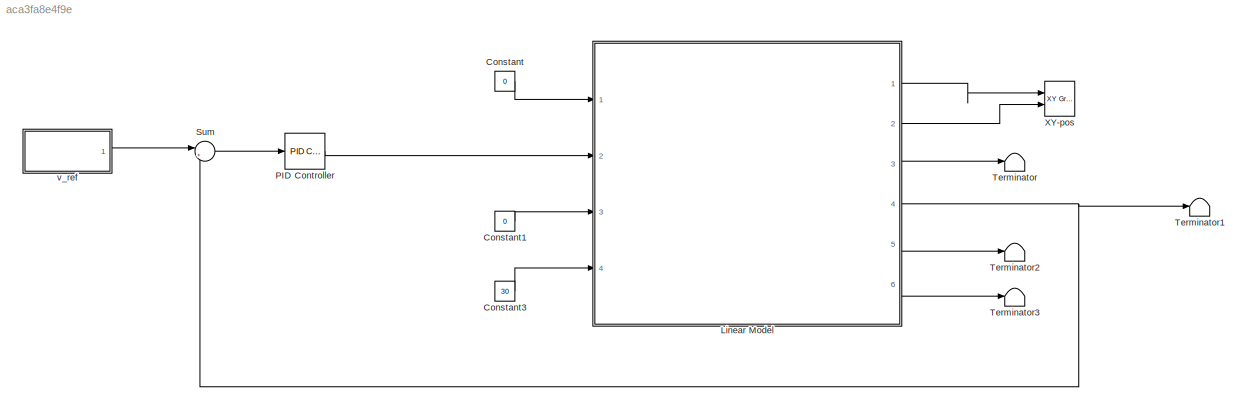
MODEL slx_aca3fa8e4f9e
KIND model
CONFIG AbsTol = auto
CONFIG EnableMultiTasking = off
CONFIG FixedStep = auto
CONFIG MaxStep = auto
CONFIG MinStep = auto
CONFIG RelTol = 1e-3
CONFIG SampleTimeConstraint = Unconstrained
CONFIG Solver = VariableStepAuto
CONFIG SolverName = VariableStepAuto
CONFIG StartTime = 0.0
CONFIG StopTime = 100
BLOCK [Constant] Constant
  Value = 0
BLOCK [Constant] Constant1
  Value = 0
BLOCK [Constant] Constant3
  Value = 30
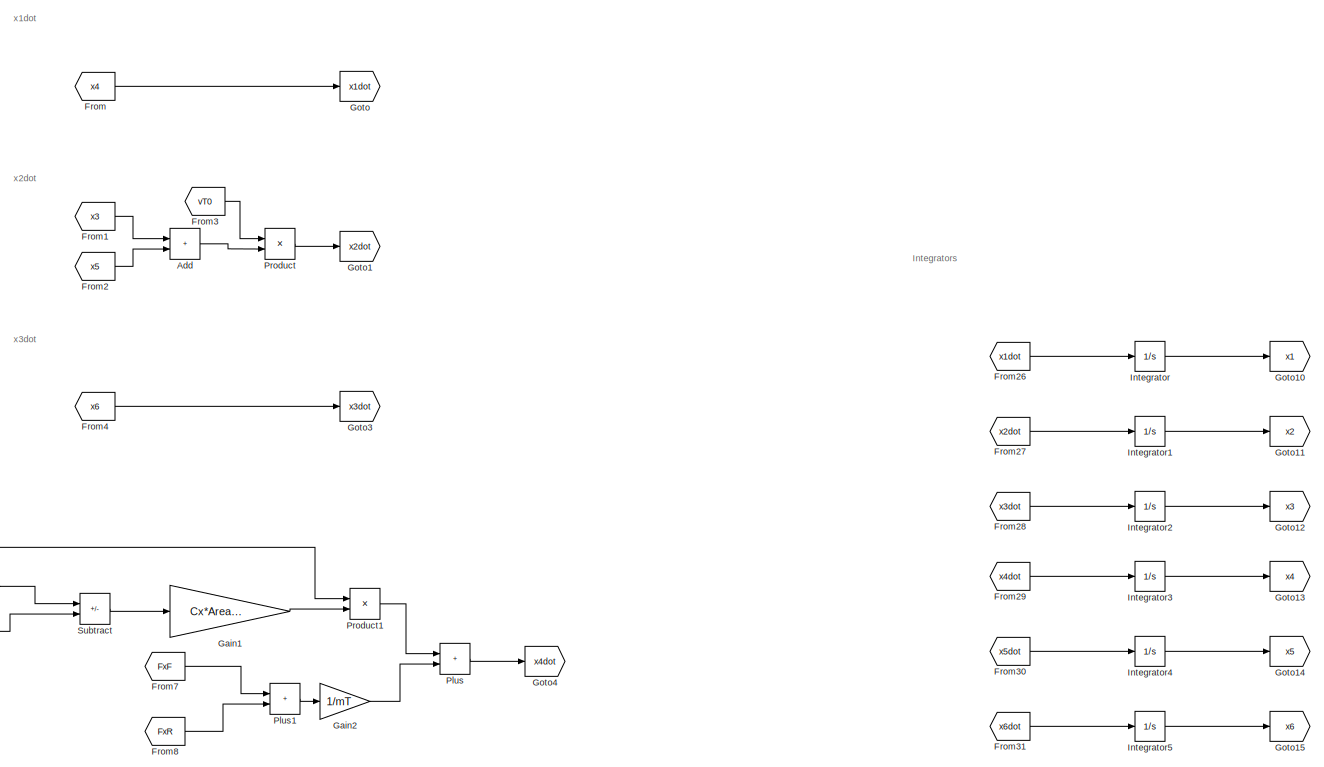
[diagram: Linear Model - part 1/4, top center region]
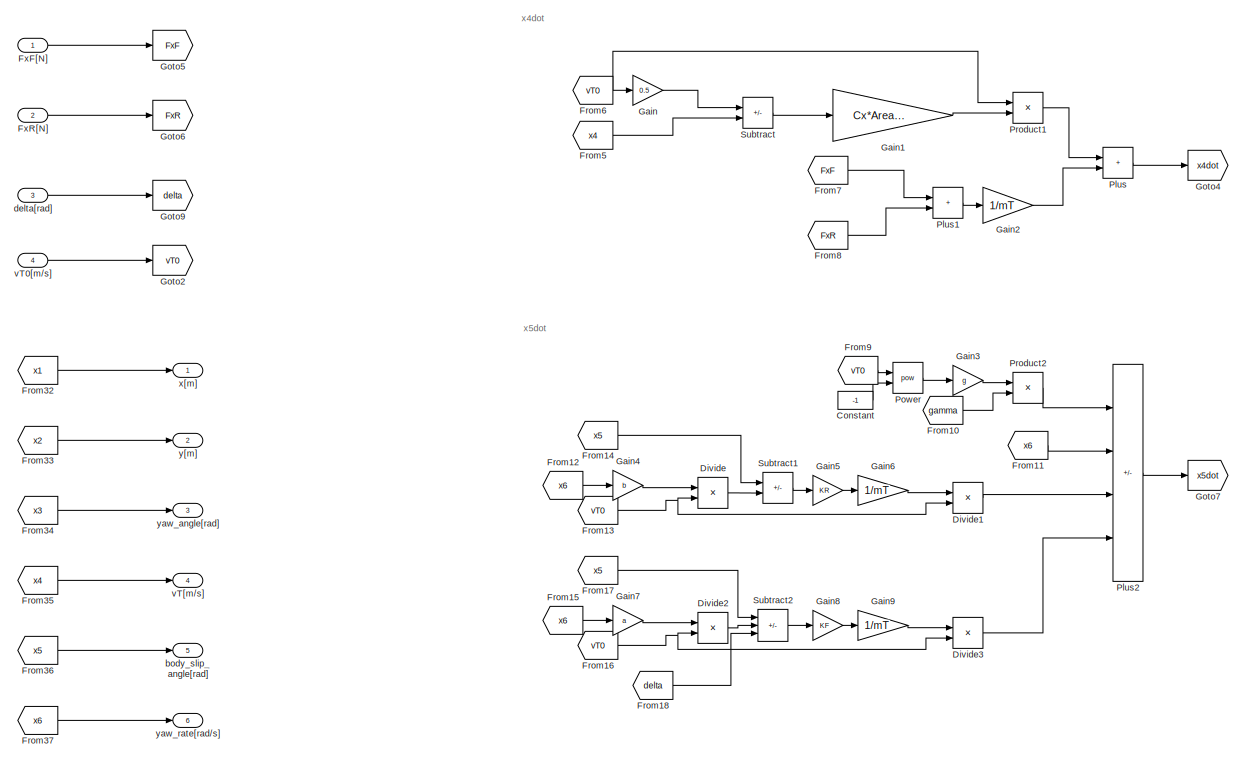
[diagram: Linear Model - part 2/4, middle left region]
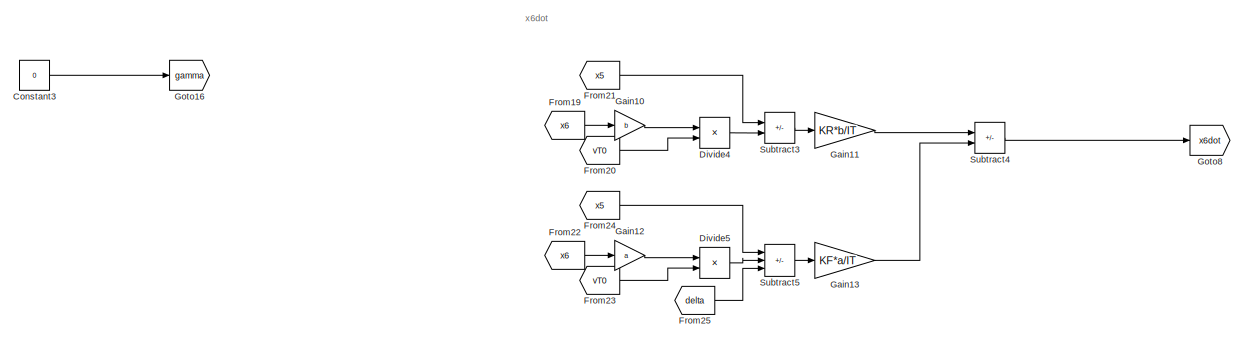
[diagram: Linear Model - part 3/4, bottom left region]
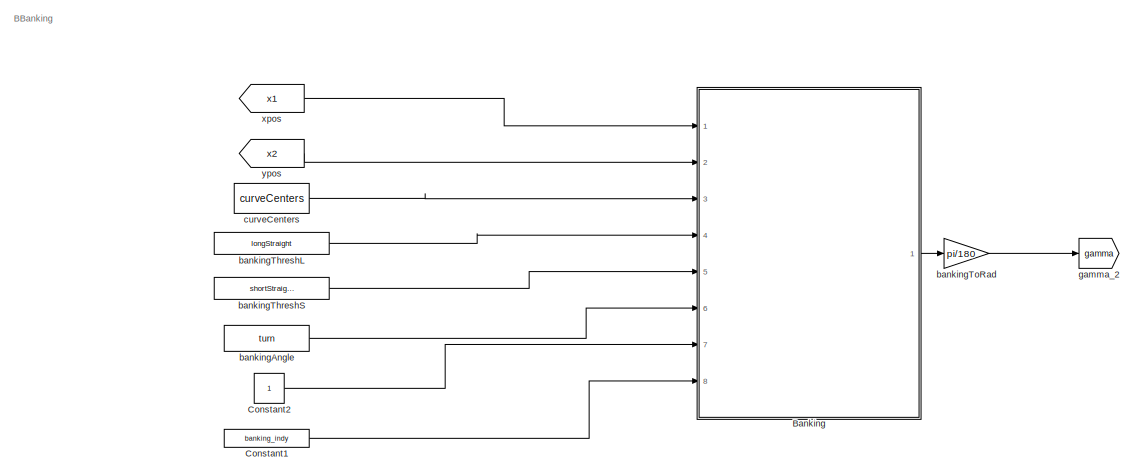
[diagram: Linear Model - part 4/4, bottom center region]
BLOCK [SubSystem] Linear Model
  Ports = [4, 6]
  RequestExecContextInheritance = off
BLOCK [Sum] Linear Model/Add
  IconShape = rectangular
  Ports = [2, 1]
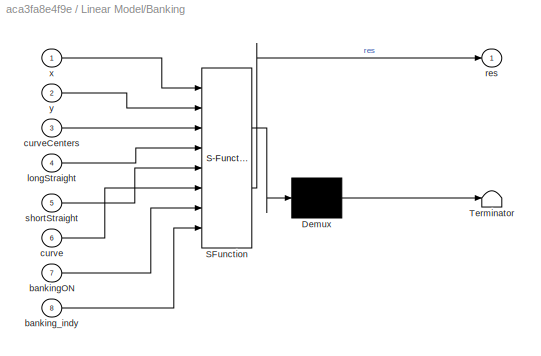
BLOCK [SubSystem] Linear Model/Banking
  Commented = on
  ErrorFcn = Stateflow.Translate.translate
  PermitHierarchicalResolution = ExplicitOnly
  Ports = [8, 1]
  RequestExecContextInheritance = off
  SFBlockType = MATLAB Function
  TreatAsAtomicUnit = on
BLOCK [Demux] Linear Model/Banking/ Demux 
  Outputs = 1
  Ports = [1, 1]
BLOCK [S-Function] Linear Model/Banking/ SFunction 
  EnableBusSupport = on
  FunctionName = sf_sfun
  PortCounts = [8 2]
  Ports = [8, 2]
  SFcnIsStateOwnerBlock = off
  SFunctionDeploymentMode = off
  Tag = Stateflow S-Function 2
BLOCK [Terminator] Linear Model/Banking/ Terminator 
BLOCK [Inport] Linear Model/Banking/bankingON
  Port = 7
BLOCK [Inport] Linear Model/Banking/banking_indy
  Port = 8
BLOCK [Inport] Linear Model/Banking/curve
  Port = 6
BLOCK [Inport] Linear Model/Banking/curveCenters
  Port = 3
BLOCK [Inport] Linear Model/Banking/longStraight
  Port = 4
BLOCK [Outport] Linear Model/Banking/res
BLOCK [Inport] Linear Model/Banking/shortStraight
  Port = 5
BLOCK [Inport] Linear Model/Banking/x
BLOCK [Inport] Linear Model/Banking/y
  Port = 2
BLOCK [Constant] Linear Model/Constant
  Value = -1
BLOCK [Constant] Linear Model/Constant1
  Commented = on
  Value = banking_indy
BLOCK [Constant] Linear Model/Constant2
  Commented = on
BLOCK [Constant] Linear Model/Constant3
  Value = 0
BLOCK [Product] Linear Model/Divide
  Inputs = */
  Ports = [2, 1]
BLOCK [Product] Linear Model/Divide1
  Inputs = */
  Ports = [2, 1]
BLOCK [Product] Linear Model/Divide2
  Inputs = */
  Ports = [2, 1]
BLOCK [Product] Linear Model/Divide3
  Inputs = */
  Ports = [2, 1]
BLOCK [Product] Linear Model/Divide4
  Inputs = */
  Ports = [2, 1]
BLOCK [Product] Linear Model/Divide5
  Inputs = */
  Ports = [2, 1]
BLOCK [From] Linear Model/From
  GotoTag = x4
BLOCK [From] Linear Model/From1
  GotoTag = x3
BLOCK [From] Linear Model/From10
  GotoTag = gamma
BLOCK [From] Linear Model/From11
  GotoTag = x6
BLOCK [From] Linear Model/From12
  GotoTag = x6
BLOCK [From] Linear Model/From13
  GotoTag = vT0
BLOCK [From] Linear Model/From14
  GotoTag = x5
BLOCK [From] Linear Model/From15
  GotoTag = x6
BLOCK [From] Linear Model/From16
  GotoTag = vT0
BLOCK [From] Linear Model/From17
  GotoTag = x5
BLOCK [From] Linear Model/From18
  GotoTag = delta
BLOCK [From] Linear Model/From19
  GotoTag = x6
BLOCK [From] Linear Model/From2
  GotoTag = x5
BLOCK [From] Linear Model/From20
  GotoTag = vT0
BLOCK [From] Linear Model/From21
  GotoTag = x5
BLOCK [From] Linear Model/From22
  GotoTag = x6
BLOCK [From] Linear Model/From23
  GotoTag = vT0
BLOCK [From] Linear Model/From24
  GotoTag = x5
BLOCK [From] Linear Model/From25
  GotoTag = delta
BLOCK [From] Linear Model/From26
  GotoTag = x1dot
BLOCK [From] Linear Model/From27
  GotoTag = x2dot
BLOCK [From] Linear Model/From28
  GotoTag = x3dot
BLOCK [From] Linear Model/From29
  GotoTag = x4dot
BLOCK [From] Linear Model/From3
  GotoTag = vT0
BLOCK [From] Linear Model/From30
  GotoTag = x5dot
BLOCK [From] Linear Model/From31
  GotoTag = x6dot
BLOCK [From] Linear Model/From32
  GotoTag = x1
BLOCK [From] Linear Model/From33
  GotoTag = x2
BLOCK [From] Linear Model/From34
  GotoTag = x3
BLOCK [From] Linear Model/From35
  GotoTag = x4
BLOCK [From] Linear Model/From36
  GotoTag = x5
BLOCK [From] Linear Model/From37
  GotoTag = x6
BLOCK [From] Linear Model/From4
  GotoTag = x6
BLOCK [From] Linear Model/From5
  GotoTag = x4
BLOCK [From] Linear Model/From6
  GotoTag = vT0
BLOCK [From] Linear Model/From7
  GotoTag = FxF
BLOCK [From] Linear Model/From8
  GotoTag = FxR
BLOCK [From] Linear Model/From9
  GotoTag = vT0
BLOCK [Inport] Linear Model/FxF[N]
  Unit = N
BLOCK [Inport] Linear Model/FxR[N]
  Port = 2
  Unit = N
BLOCK [Gain] Linear Model/Gain
  Gain = 0.5
BLOCK [Gain] Linear Model/Gain1
  Gain = Cx*Area*rho_0/mT
BLOCK [Gain] Linear Model/Gain10
  Gain = b
BLOCK [Gain] Linear Model/Gain11
  Gain = KR*b/IT
BLOCK [Gain] Linear Model/Gain12
  Gain = a
BLOCK [Gain] Linear Model/Gain13
  Gain = KF*a/IT
BLOCK [Gain] Linear Model/Gain2
  Gain = 1/mT
BLOCK [Gain] Linear Model/Gain3
  Gain = g
BLOCK [Gain] Linear Model/Gain4
  Gain = b
BLOCK [Gain] Linear Model/Gain5
  Gain = KR
BLOCK [Gain] Linear Model/Gain6
  Gain = 1/mT
BLOCK [Gain] Linear Model/Gain7
  Gain = a
BLOCK [Gain] Linear Model/Gain8
  Gain = KF
BLOCK [Gain] Linear Model/Gain9
  Gain = 1/mT
BLOCK [Goto] Linear Model/Goto
  GotoTag = x1dot
BLOCK [Goto] Linear Model/Goto1
  GotoTag = x2dot
BLOCK [Goto] Linear Model/Goto10
  GotoTag = x1
BLOCK [Goto] Linear Model/Goto11
  GotoTag = x2
BLOCK [Goto] Linear Model/Goto12
  GotoTag = x3
BLOCK [Goto] Linear Model/Goto13
  GotoTag = x4
BLOCK [Goto] Linear Model/Goto14
  GotoTag = x5
BLOCK [Goto] Linear Model/Goto15
  GotoTag = x6
BLOCK [Goto] Linear Model/Goto16
  GotoTag = gamma
BLOCK [Goto] Linear Model/Goto2
  GotoTag = vT0
BLOCK [Goto] Linear Model/Goto3
  GotoTag = x3dot
BLOCK [Goto] Linear Model/Goto4
  GotoTag = x4dot
BLOCK [Goto] Linear Model/Goto5
  GotoTag = FxF
BLOCK [Goto] Linear Model/Goto6
  GotoTag = FxR
BLOCK [Goto] Linear Model/Goto7
  GotoTag = x5dot
BLOCK [Goto] Linear Model/Goto8
  GotoTag = x6dot
BLOCK [Goto] Linear Model/Goto9
  GotoTag = delta
BLOCK [Integrator] Linear Model/Integrator
  Ports = [1, 1]
BLOCK [Integrator] Linear Model/Integrator1
  Ports = [1, 1]
BLOCK [Integrator] Linear Model/Integrator2
  Ports = [1, 1]
BLOCK [Integrator] Linear Model/Integrator3
  InitialCondition = 25
  LimitOutput = on
  LowerSaturationLimit = 0
  Ports = [1, 1]
BLOCK [Integrator] Linear Model/Integrator4
  Ports = [1, 1]
BLOCK [Integrator] Linear Model/Integrator5
  Ports = [1, 1]
BLOCK [Sum] Linear Model/Plus
  IconShape = rectangular
  Ports = [2, 1]
BLOCK [Sum] Linear Model/Plus1
  IconShape = rectangular
  Ports = [2, 1]
BLOCK [Sum] Linear Model/Plus2
  IconShape = rectangular
  Inputs = +---
  Ports = [4, 1]
BLOCK [Math] Linear Model/Power
  Operator = pow
  Ports = [2, 1]
BLOCK [Product] Linear Model/Product
  Ports = [2, 1]
BLOCK [Product] Linear Model/Product1
  Ports = [2, 1]
BLOCK [Product] Linear Model/Product2
  Ports = [2, 1]
BLOCK [Sum] Linear Model/Subtract
  IconShape = rectangular
  Inputs = +-
  Ports = [2, 1]
BLOCK [Sum] Linear Model/Subtract1
  IconShape = rectangular
  Inputs = +-
  Ports = [2, 1]
BLOCK [Sum] Linear Model/Subtract2
  IconShape = rectangular
  Inputs = ++-
  Ports = [3, 1]
BLOCK [Sum] Linear Model/Subtract3
  IconShape = rectangular
  Inputs = +-
  Ports = [2, 1]
BLOCK [Sum] Linear Model/Subtract4
  IconShape = rectangular
  Inputs = +-
  Ports = [2, 1]
BLOCK [Sum] Linear Model/Subtract5
  IconShape = rectangular
  Inputs = ++-
  Ports = [3, 1]
BLOCK [Constant] Linear Model/bankingAngle
  Commented = on
  Value = turn
BLOCK [Constant] Linear Model/bankingThreshL
  Commented = on
  Value = longStraight
BLOCK [Constant] Linear Model/bankingThreshS
  Commented = on
  Value = shortStraight
BLOCK [Gain] Linear Model/bankingToRad
  Commented = on
  Gain = pi/180
BLOCK [Outport] Linear Model/body_slip_angle[rad]
  Port = 5
  Unit = rad
BLOCK [Constant] Linear Model/curveCenters
  Commented = on
  Value = curveCenters
BLOCK [Inport] Linear Model/delta[rad]
  Port = 3
  Unit = N
BLOCK [Goto] Linear Model/gamma_2
  Commented = on
  GotoTag = gamma
BLOCK [Inport] Linear Model/vT0[m//s]
  Port = 4
  Unit = m/s
BLOCK [Outport] Linear Model/vT[m//s]
  Port = 4
  Unit = m/s
BLOCK [Outport] Linear Model/x[m]
  Unit = m
BLOCK [From] Linear Model/xpos
  Commented = on
  GotoTag = x1
BLOCK [Outport] Linear Model/y[m]
  Port = 2
  Unit = m
BLOCK [Outport] Linear Model/yaw_angle[rad]
  Port = 3
  Unit = rad
BLOCK [Outport] Linear Model/yaw_rate[rad//s]
  Port = 6
  Unit = rad/s
BLOCK [From] Linear Model/ypos
  Commented = on
  GotoTag = x2
BLOCK [Reference] PID Controller  REF=simulink/Continuous/PID Controller
  Ports = [1, 1]
  SourceBlock = simulink/Continuous/PID Controller
  SourceProductBaseCode = SL
  SourceType = PID 1dof
BLOCK [Sum] Sum
  Inputs = |+-
  Ports = [2, 1]
BLOCK [Terminator] Terminator
BLOCK [Terminator] Terminator1
BLOCK [Terminator] Terminator2
BLOCK [Terminator] Terminator3
BLOCK [Reference] XY-pos  REF=simulink/Sinks/XY Graph
  Ports = [2]
  SourceBlock = simulink/Sinks/XY Graph
  SourceProductBaseCode = SL
  SourceType = XY scope.
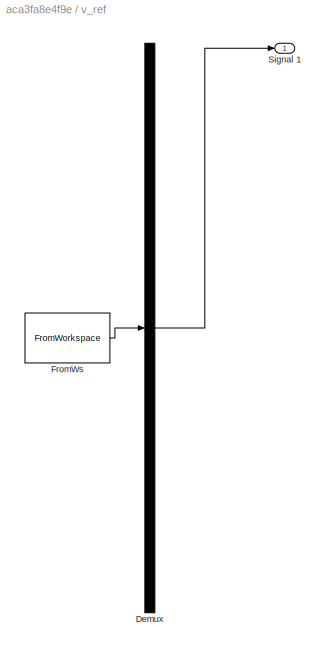
BLOCK [SubSystem] v_ref
  ClipboardFcn = sigbuilder_block('clipboard');
  CloseFcn = sigbuilder_block('close');
  ContinueFcn = sigbuilder_block('continue');
  CopyFcn = sigbuilder_block('copy');
  DeleteFcn = sigbuilder_block('delete');
  LoadFcn = sigbuilder_block('load');
  MaskHideContents = on
  ModelCloseFcn = sigbuilder_block('modelClose');
  NameChangeFcn = sigbuilder_block('namechange');
  OpenFcn = sigbuilder_block('open',[0 30 1152 561.6 ]);
  PauseFcn = sigbuilder_block('pause');
  Ports = [0, 1]
  PreSaveFcn = sigbuilder_block('preSave');
  RequestExecContextInheritance = off
  StartFcn = sigbuilder_block('start');
  StopFcn = sigbuilder_block('stop');
  Tag = STV Subsys
BLOCK [Demux] v_ref/Demux
  DisplayOption = none
  Outputs = 1
  Ports = [1, 1]
  Tag = STV Demux
BLOCK [FromWorkspace] v_ref/FromWs
  Tag = STV FromWs
  VariableName = tuvar
BLOCK [Outport] v_ref/Signal 1
  Tag = STV Outport
ANNOTATION Linear Model: BBanking
ANNOTATION Linear Model: Integrators
ANNOTATION Linear Model: x1dot
ANNOTATION Linear Model: x2dot
ANNOTATION Linear Model: x3dot
ANNOTATION Linear Model: x4dot
ANNOTATION Linear Model: x5dot
ANNOTATION Linear Model: x6dot
LINE Constant1:1 -> Linear Model:3
LINE Constant3:1 -> Linear Model:4
LINE Constant:1 -> Linear Model:1
LINE Linear Model/Add:1 -> Linear Model/Product:2
LINE Linear Model/Banking:1 -> Linear Model/bankingToRad:1
LINE Linear Model/Constant1:1 -> Linear Model/Banking:8
LINE Linear Model/Constant2:1 -> Linear Model/Banking:7
LINE Linear Model/Constant3:1 -> Linear Model/Goto16:1
LINE Linear Model/Constant:1 -> Linear Model/Power:2
LINE Linear Model/Divide1:1 -> Linear Model/Plus2:3
LINE Linear Model/Divide2:1 -> Linear Model/Subtract2:2
LINE Linear Model/Divide3:1 -> Linear Model/Plus2:4
LINE Linear Model/Divide4:1 -> Linear Model/Subtract3:2
LINE Linear Model/Divide5:1 -> Linear Model/Subtract5:2
LINE Linear Model/Divide:1 -> Linear Model/Subtract1:2
LINE Linear Model/From10:1 -> Linear Model/Product2:2
LINE Linear Model/From11:1 -> Linear Model/Plus2:2
LINE Linear Model/From12:1 -> Linear Model/Gain4:1
NET Linear Model/From13:1 -> Linear Model/Divide1:2, Linear Model/Divide:2
LINE Linear Model/From14:1 -> Linear Model/Subtract1:1
LINE Linear Model/From15:1 -> Linear Model/Gain7:1
NET Linear Model/From16:1 -> Linear Model/Divide2:2, Linear Model/Divide3:2
LINE Linear Model/From17:1 -> Linear Model/Subtract2:1
LINE Linear Model/From18:1 -> Linear Model/Subtract2:3
LINE Linear Model/From19:1 -> Linear Model/Gain10:1
LINE Linear Model/From1:1 -> Linear Model/Add:1
LINE Linear Model/From20:1 -> Linear Model/Divide4:2
LINE Linear Model/From21:1 -> Linear Model/Subtract3:1
LINE Linear Model/From22:1 -> Linear Model/Gain12:1
LINE Linear Model/From23:1 -> Linear Model/Divide5:2
LINE Linear Model/From24:1 -> Linear Model/Subtract5:1
LINE Linear Model/From25:1 -> Linear Model/Subtract5:3
LINE Linear Model/From26:1 -> Linear Model/Integrator:1
LINE Linear Model/From27:1 -> Linear Model/Integrator1:1
LINE Linear Model/From28:1 -> Linear Model/Integrator2:1
LINE Linear Model/From29:1 -> Linear Model/Integrator3:1
LINE Linear Model/From2:1 -> Linear Model/Add:2
LINE Linear Model/From30:1 -> Linear Model/Integrator4:1
LINE Linear Model/From31:1 -> Linear Model/Integrator5:1
LINE Linear Model/From32:1 -> Linear Model/x[m]:1
LINE Linear Model/From33:1 -> Linear Model/y[m]:1
LINE Linear Model/From34:1 -> Linear Model/yaw_angle[rad]:1
LINE Linear Model/From35:1 -> Linear Model/vT[m//s]:1
LINE Linear Model/From36:1 -> Linear Model/body_slip_angle[rad]:1
LINE Linear Model/From37:1 -> Linear Model/yaw_rate[rad//s]:1
LINE Linear Model/From3:1 -> Linear Model/Product:1
LINE Linear Model/From4:1 -> Linear Model/Goto3:1
LINE Linear Model/From5:1 -> Linear Model/Subtract:2
NET Linear Model/From6:1 -> Linear Model/Gain:1, Linear Model/Product1:1
LINE Linear Model/From7:1 -> Linear Model/Plus1:1
LINE Linear Model/From8:1 -> Linear Model/Plus1:2
LINE Linear Model/From9:1 -> Linear Model/Power:1
LINE Linear Model/From:1 -> Linear Model/Goto:1
LINE Linear Model/FxF[N]:1 -> Linear Model/Goto5:1
LINE Linear Model/FxR[N]:1 -> Linear Model/Goto6:1
LINE Linear Model/Gain10:1 -> Linear Model/Divide4:1
LINE Linear Model/Gain11:1 -> Linear Model/Subtract4:1
LINE Linear Model/Gain12:1 -> Linear Model/Divide5:1
LINE Linear Model/Gain13:1 -> Linear Model/Subtract4:2
LINE Linear Model/Gain1:1 -> Linear Model/Product1:2
LINE Linear Model/Gain2:1 -> Linear Model/Plus:2
LINE Linear Model/Gain3:1 -> Linear Model/Product2:1
LINE Linear Model/Gain4:1 -> Linear Model/Divide:1
LINE Linear Model/Gain5:1 -> Linear Model/Gain6:1
LINE Linear Model/Gain6:1 -> Linear Model/Divide1:1
LINE Linear Model/Gain7:1 -> Linear Model/Divide2:1
LINE Linear Model/Gain8:1 -> Linear Model/Gain9:1
LINE Linear Model/Gain9:1 -> Linear Model/Divide3:1
LINE Linear Model/Gain:1 -> Linear Model/Subtract:1
LINE Linear Model/Integrator1:1 -> Linear Model/Goto11:1
LINE Linear Model/Integrator2:1 -> Linear Model/Goto12:1
LINE Linear Model/Integrator3:1 -> Linear Model/Goto13:1
LINE Linear Model/Integrator4:1 -> Linear Model/Goto14:1
LINE Linear Model/Integrator5:1 -> Linear Model/Goto15:1
LINE Linear Model/Integrator:1 -> Linear Model/Goto10:1
LINE Linear Model/Plus1:1 -> Linear Model/Gain2:1
LINE Linear Model/Plus2:1 -> Linear Model/Goto7:1
LINE Linear Model/Plus:1 -> Linear Model/Goto4:1
LINE Linear Model/Power:1 -> Linear Model/Gain3:1
LINE Linear Model/Product1:1 -> Linear Model/Plus:1
LINE Linear Model/Product2:1 -> Linear Model/Plus2:1
LINE Linear Model/Product:1 -> Linear Model/Goto1:1
LINE Linear Model/Subtract1:1 -> Linear Model/Gain5:1
LINE Linear Model/Subtract2:1 -> Linear Model/Gain8:1
LINE Linear Model/Subtract3:1 -> Linear Model/Gain11:1
LINE Linear Model/Subtract4:1 -> Linear Model/Goto8:1
LINE Linear Model/Subtract5:1 -> Linear Model/Gain13:1
LINE Linear Model/Subtract:1 -> Linear Model/Gain1:1
LINE Linear Model/bankingAngle:1 -> Linear Model/Banking:6
LINE Linear Model/bankingThreshL:1 -> Linear Model/Banking:4
LINE Linear Model/bankingThreshS:1 -> Linear Model/Banking:5
LINE Linear Model/bankingToRad:1 -> Linear Model/gamma_2:1
LINE Linear Model/curveCenters:1 -> Linear Model/Banking:3
LINE Linear Model/delta[rad]:1 -> Linear Model/Goto9:1
LINE Linear Model/vT0[m//s]:1 -> Linear Model/Goto2:1
LINE Linear Model/xpos:1 -> Linear Model/Banking:1
LINE Linear Model/ypos:1 -> Linear Model/Banking:2
LINE Linear Model:1 -> XY-pos:1
LINE Linear Model:2 -> XY-pos:2
LINE Linear Model:3 -> Terminator:1
NET Linear Model:4 -> Sum:2, Terminator1:1
LINE Linear Model:5 -> Terminator2:1
LINE Linear Model:6 -> Terminator3:1
LINE PID Controller:1 -> Linear Model:2
LINE Sum:1 -> PID Controller:1
LINE v_ref:1 -> Sum:1
note: NET lines group one-source signal fan-out (src -> all destinations, sorted); 1:1 wires keep LINE
CHART Linear Model/Banking states=1 transitions=1
  STATE_LABEL 'eML_blk_kernel()'
  STATE_LABEL "SCRIPT:\nfunction res = calculateBanking(x, y, curveCenters, ...\n    longStraight, shortStraight, curve, ...\n    bankingON, banking_indy)\n\n% coder.extrinsic('evalin')\n% coder.extrinsic('fitresult')\n% fun = evalin('base','fitresult');\n\ninit_x = -271.4;\ntotL = 4023.4;\ninitD = pdist2([init_x, 0], [curveCenters(1,1),0]);\n\nR = curve * 2 / pi;\n\n\nif (bankingON < 1)\n    res = 0;\nelse\n    % long straight 1\n...<+2537ch>"
CHART  states=0 transitions=0
